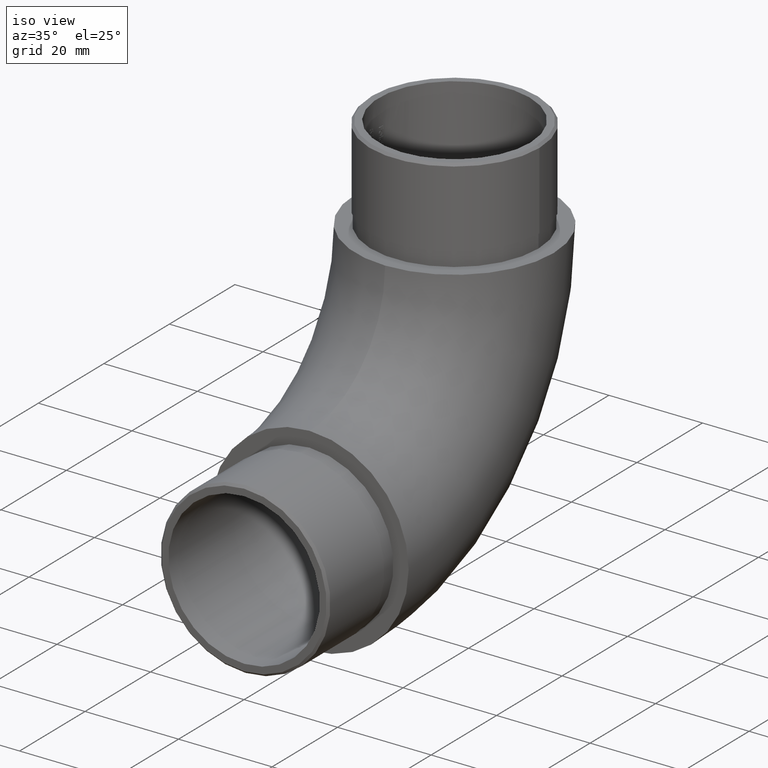
[diagram: clean part render]
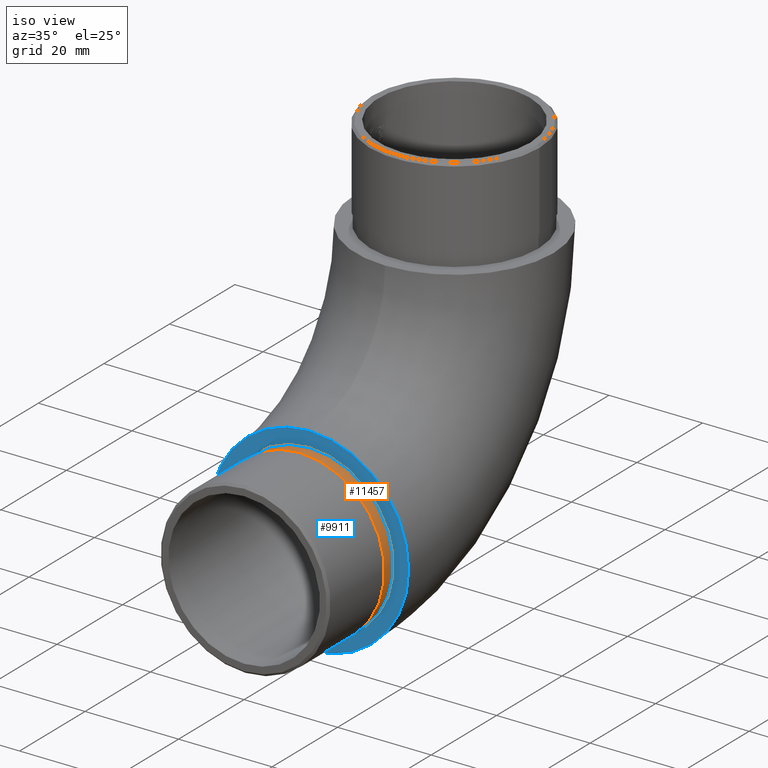
[diagram: same view with the hole feature highlighted: cylindrical wall and planar end face, labeled with their STEP entity ids]
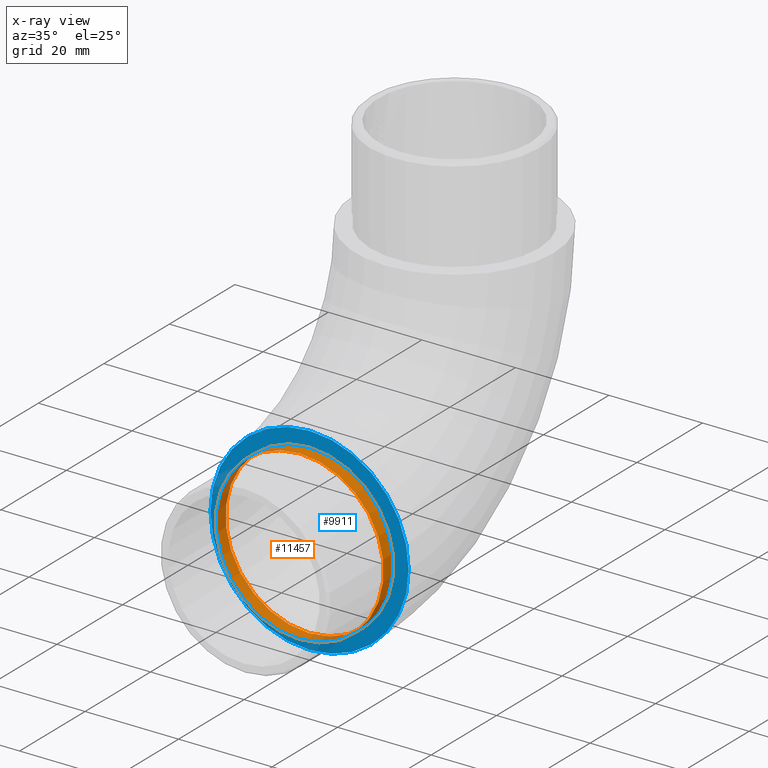
[diagram: x-ray of the same camera — body ghosted, the hole faces saturated]
A machine part, iso view. The highlighted faces form one hole feature of diameter 35.9 mm: the cylindrical wall (entity #11457, orange) and its adjacent planar end face (entity #9911, blue) — they share a circular edge in the B-rep.
The next image is the same camera in x-ray (body ghosted, the hole faces saturated) — the bore reads through the body.
Wall:
#1525 = CARTESIAN_POINT ( 'NONE',  ( 0.0000000000000000000, 0.0000000000000000000, 39.15000000000000600 ) ) ;
#2662 = AXIS2_PLACEMENT_3D ( 'NONE', #11288, #12282, #7150 ) ;
#2972 = CARTESIAN_POINT ( 'NONE',  ( 0.0000000000000000000, 0.0000000000000000000, 21.20000000000000300 ) ) ;
#3062 = FACE_OUTER_BOUND ( 'NONE', #6198, .T. ) ;
#3270 = DIRECTION ( 'NONE',  ( -0.0000000000000000000, 1.000000000000000000, -0.0000000000000000000 ) ) ;
#5332 = DIRECTION ( 'NONE',  ( 0.0000000000000000000, 0.0000000000000000000, 1.000000000000000000 ) ) ;
#6098 = DIRECTION ( 'NONE',  ( 0.0000000000000000000, 0.0000000000000000000, 1.000000000000000000 ) ) ;
#6198 = EDGE_LOOP ( 'NONE', ( #8602 ) ) ;
#6248 = CIRCLE ( 'NONE', #12162, 17.94999999999999900 ) ;
#6603 = FACE_OUTER_BOUND ( 'NONE', #7035, .T. ) ;
#7035 = EDGE_LOOP ( 'NONE', ( #9660 ) ) ;
#7150 = DIRECTION ( 'NONE',  ( 0.0000000000000000000, 0.0000000000000000000, -1.000000000000000000 ) ) ;
#7386 = VERTEX_POINT ( 'NONE', #7672 ) ;
#7672 = CARTESIAN_POINT ( 'NONE',  ( 0.0000000000000000000, -3.000000000000000000, 3.250000000000002700 ) ) ;
#7890 = AXIS2_PLACEMENT_3D ( 'NONE', #12574, #3270, #5332 ) ;
#8602 = ORIENTED_EDGE ( 'NONE', *, *, #13008, .T. ) ;
#9474 = CYLINDRICAL_SURFACE ( 'NONE', #7890, 17.94999999999999900 ) ;
#9660 = ORIENTED_EDGE ( 'NONE', *, *, #10842, .F. ) ;
#10196 = DIRECTION ( 'NONE',  ( -0.0000000000000000000, -1.000000000000000000, -0.0000000000000000000 ) ) ;
#10255 = CIRCLE ( 'NONE', #2662, 17.94999999999999900 ) ;
#10842 = EDGE_CURVE ( 'NONE', #7386, #7386, #10255, .T. ) ;
#11288 = CARTESIAN_POINT ( 'NONE',  ( 0.0000000000000000000, -3.000000000000000000, 21.20000000000000300 ) ) ;
#11457 = ADVANCED_FACE ( 'NONE', ( #6603, #3062 ), #9474, .T. ) ;
#12162 = AXIS2_PLACEMENT_3D ( 'NONE', #2972, #10196, #6098 ) ;
#12282 = DIRECTION ( 'NONE',  ( 0.0000000000000000000, -1.000000000000000000, 0.0000000000000000000 ) ) ;
#12574 = CARTESIAN_POINT ( 'NONE',  ( 0.0000000000000000000, -3.000000000000000000, 21.20000000000000300 ) ) ;
#12813 = VERTEX_POINT ( 'NONE', #1525 ) ;
#13008 = EDGE_CURVE ( 'NONE', #12813, #12813, #6248, .T. ) ;
End face:
#37 = FACE_BOUND ( 'NONE', #4343, .T. ) ;
#148 = ORIENTED_EDGE ( 'NONE', *, *, #12334, .F. ) ;
#1193 = AXIS2_PLACEMENT_3D ( 'NONE', #3185, #5205, #3233 ) ;
#1525 = CARTESIAN_POINT ( 'NONE',  ( 0.0000000000000000000, 0.0000000000000000000, 39.15000000000000600 ) ) ;
#1925 = VERTEX_POINT ( 'NONE', #6753 ) ;
#2972 = CARTESIAN_POINT ( 'NONE',  ( 0.0000000000000000000, 0.0000000000000000000, 21.20000000000000300 ) ) ;
#3185 = CARTESIAN_POINT ( 'NONE',  ( 0.0000000000000000000, 0.0000000000000000000, 21.19999999999999900 ) ) ;
#3233 = DIRECTION ( 'NONE',  ( 0.0000000000000000000, 0.0000000000000000000, 1.000000000000000000 ) ) ;
#3554 = CIRCLE ( 'NONE', #1193, 21.19999999999999900 ) ;
#4343 = EDGE_LOOP ( 'NONE', ( #10182 ) ) ;
#4550 = FACE_OUTER_BOUND ( 'NONE', #7997, .T. ) ;
#4561 = PLANE ( 'NONE',  #8740 ) ;
#4733 = DIRECTION ( 'NONE',  ( 0.0000000000000000000, 1.000000000000000000, 0.0000000000000000000 ) ) ;
#5205 = DIRECTION ( 'NONE',  ( 0.0000000000000000000, 1.000000000000000000, 0.0000000000000000000 ) ) ;
#6098 = DIRECTION ( 'NONE',  ( 0.0000000000000000000, 0.0000000000000000000, 1.000000000000000000 ) ) ;
#6248 = CIRCLE ( 'NONE', #12162, 17.94999999999999900 ) ;
#6689 = CARTESIAN_POINT ( 'NONE',  ( 0.0000000000000000000, 0.0000000000000000000, 21.19999999999999900 ) ) ;
#6753 = CARTESIAN_POINT ( 'NONE',  ( 0.0000000000000000000, 0.0000000000000000000, 42.39999999999999900 ) ) ;
#7997 = EDGE_LOOP ( 'NONE', ( #148 ) ) ;
#8740 = AXIS2_PLACEMENT_3D ( 'NONE', #6689, #4733, #12899 ) ;
#9911 = ADVANCED_FACE ( 'NONE', ( #4550, #37 ), #4561, .F. ) ;
#10182 = ORIENTED_EDGE ( 'NONE', *, *, #13008, .F. ) ;
#10196 = DIRECTION ( 'NONE',  ( -0.0000000000000000000, -1.000000000000000000, -0.0000000000000000000 ) ) ;
#12162 = AXIS2_PLACEMENT_3D ( 'NONE', #2972, #10196, #6098 ) ;
#12334 = EDGE_CURVE ( 'NONE', #1925, #1925, #3554, .T. ) ;
#12813 = VERTEX_POINT ( 'NONE', #1525 ) ;
#12899 = DIRECTION ( 'NONE',  ( 0.0000000000000000000, -0.0000000000000000000, 1.000000000000000000 ) ) ;
#13008 = EDGE_CURVE ( 'NONE', #12813, #12813, #6248, .T. ) ;